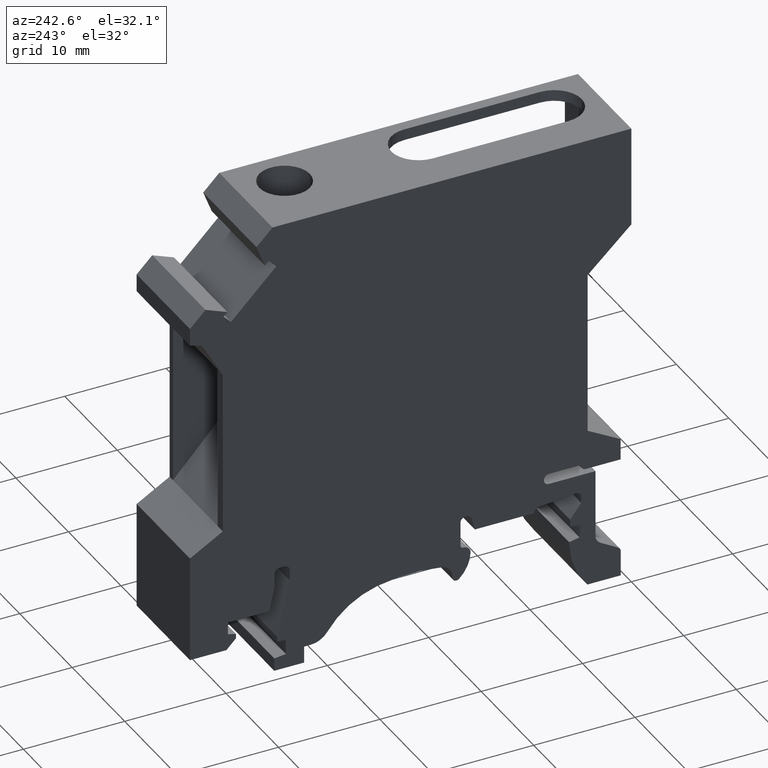
[diagram: clean part render]
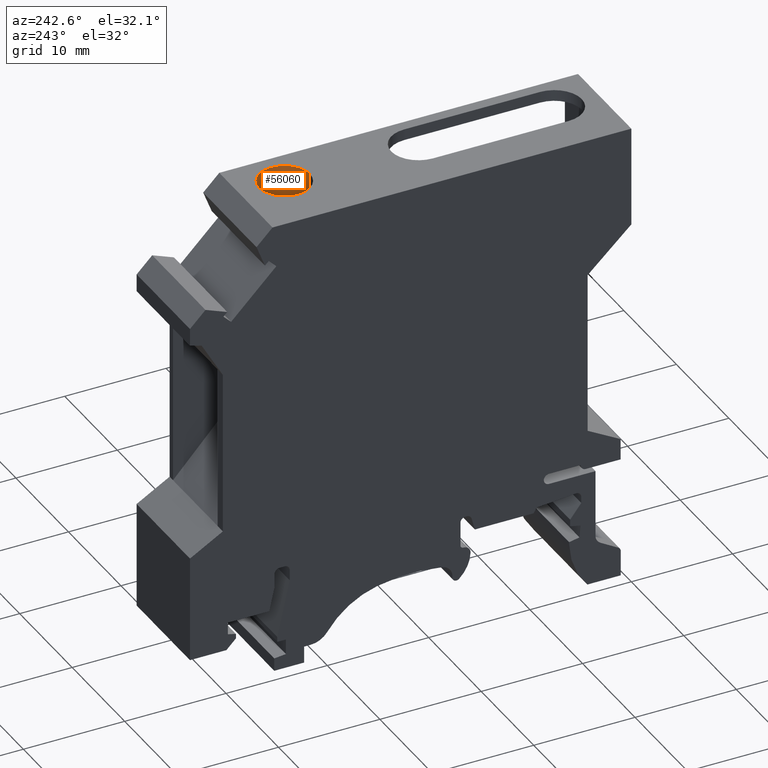
[diagram: same view with one face highlighted and labeled with its STEP entity id]
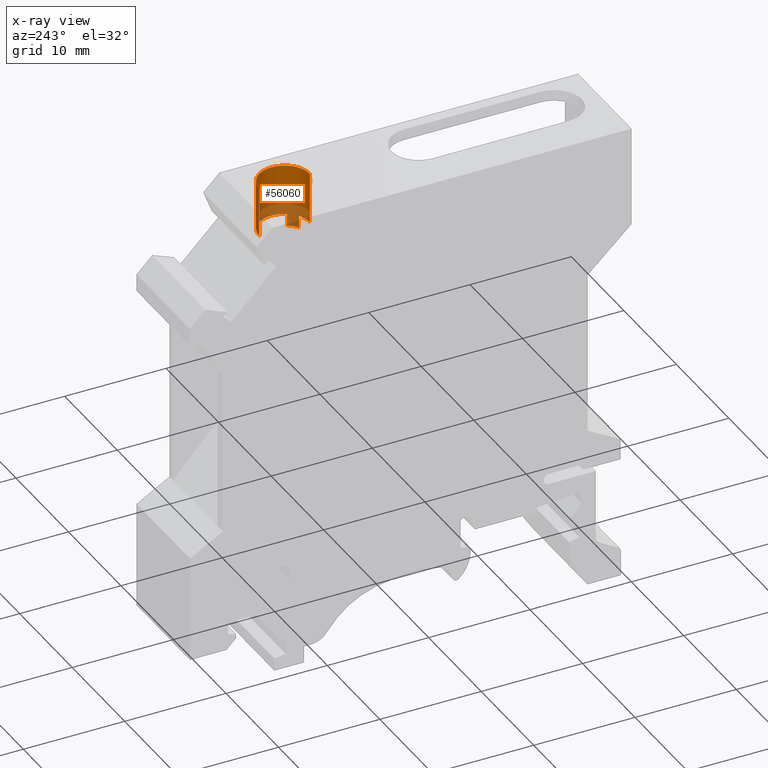
[diagram: x-ray of the same camera — body ghosted, the highlighted face saturated]
A machine part, auxiliary view. The second image highlights one B-rep face of the part: STEP entity #56060.
The next image is the same camera in x-ray: the body ghosted, the highlighted face saturated — about 24% of this face is hidden behind the body in this view.
In plain terms, the highlighted cylindrical surface (edge-blend (fillet) strip) has radius 2.5 mm, axis along (0, 0, 1).
Its self-contained STEP definition (entity closure, byte-faithful):
#17910=CARTESIAN_POINT('',(40.4541997327281,36.058658177701,6.35));
#17920=DIRECTION('',(0.,1.,0.));
#17930=DIRECTION('',(1.,0.,0.));
#17940=AXIS2_PLACEMENT_3D('',#17910,#17920,#17930);
#17950=CIRCLE('',#17940,2.5);
#17960=CARTESIAN_POINT('',(42.9541997327281,36.058658177701,6.35));
#17970=VERTEX_POINT('',#17960);
#17980=CARTESIAN_POINT('',(37.9541997327281,36.058658177701,6.35));
#17990=VERTEX_POINT('',#17980);
#18020=EDGE_CURVE('',#17990,#17970,#17950,.T.);
#47590=CARTESIAN_POINT('',(40.4541997327281,31.058658177701,6.35));
#47600=DIRECTION('',(0.,1.,0.));
#47610=DIRECTION('',(1.,0.,0.));
#47620=AXIS2_PLACEMENT_3D('',#47590,#47600,#47610);
#47630=CIRCLE('',#47620,2.5);
#47640=CARTESIAN_POINT('',(39.1186520262827,31.058658177701,
8.46336516575066));
#47650=VERTEX_POINT('',#47640);
#47660=CARTESIAN_POINT('',(42.9541997327281,31.058658177701,6.35));
#47670=VERTEX_POINT('',#47660);
#47680=EDGE_CURVE('',#47650,#47670,#47630,.T.);
#48200=CARTESIAN_POINT('',(37.9541997327281,31.058658177701,6.35));
#48210=VERTEX_POINT('',#48200);
#48240=CARTESIAN_POINT('',(37.9541997327281,36.058658177701,6.35));
#48250=DIRECTION('',(0.,1.,0.));
#48260=VECTOR('',#48250,1.);
#48270=LINE('',#48240,#48260);
#48280=EDGE_CURVE('',#48210,#17990,#48270,.T.);
#48310=CARTESIAN_POINT('',(42.9541997327281,36.058658177701,6.35));
#48320=DIRECTION('',(0.,1.,0.));
#48330=VECTOR('',#48320,1.);
#48340=LINE('',#48310,#48330);
#48350=EDGE_CURVE('',#47670,#17970,#48340,.T.);
#48480=CARTESIAN_POINT('',(38.3408345669775,31.058658177701,
7.68554770644545));
#48490=VERTEX_POINT('',#48480);
#48500=EDGE_CURVE('',#48210,#48490,#47630,.T.);
#48740=CARTESIAN_POINT('',(39.1186520262827,31.058658177701,
8.46336516575066));
#48750=DIRECTION('',(0.,-1.,0.));
#48760=VECTOR('',#48750,1.);
#48770=LINE('',#48740,#48760);
#48780=CARTESIAN_POINT('',(39.1186520262827,29.858658177701,
8.46336516575066));
#48790=VERTEX_POINT('',#48780);
#48800=EDGE_CURVE('',#47650,#48790,#48770,.T.);
#49090=CARTESIAN_POINT('',(38.3408345669775,29.858658177701,
7.68554770644545));
#49100=VERTEX_POINT('',#49090);
#49150=CARTESIAN_POINT('',(40.4541997327281,29.858658177701,6.35));
#49160=DIRECTION('',(0.,1.,0.));
#49170=DIRECTION('',(1.,0.,0.));
#49180=AXIS2_PLACEMENT_3D('',#49150,#49160,#49170);
#49190=CIRCLE('',#49180,2.5);
#49200=EDGE_CURVE('',#49100,#48790,#49190,.T.);
#49390=CARTESIAN_POINT('',(38.3408345669775,31.058658177701,
7.68554770644545));
#49400=DIRECTION('',(0.,-1.,0.));
#49410=VECTOR('',#49400,1.);
#49420=LINE('',#49390,#49410);
#49430=EDGE_CURVE('',#48490,#49100,#49420,.T.);
#55910=CARTESIAN_POINT('',(40.4541997327281,36.058658177701,6.35));
#55920=DIRECTION('',(0.,1.,0.));
#55930=DIRECTION('',(1.,0.,0.));
#55940=AXIS2_PLACEMENT_3D('',#55910,#55920,#55930);
#55950=CYLINDRICAL_SURFACE('',#55940,2.5);
#55960=ORIENTED_EDGE('',*,*,#48280,.T.);
#55970=ORIENTED_EDGE('',*,*,#48500,.F.);
#55980=ORIENTED_EDGE('',*,*,#49430,.F.);
#55990=ORIENTED_EDGE('',*,*,#49200,.F.);
#56000=ORIENTED_EDGE('',*,*,#48800,.T.);
#56010=ORIENTED_EDGE('',*,*,#47680,.F.);
#56020=ORIENTED_EDGE('',*,*,#48350,.F.);
#56030=ORIENTED_EDGE('',*,*,#18020,.T.);
#56040=EDGE_LOOP('',(#56030,#56020,#56010,#56000,#55990,#55980,#55970,
#55960));
#56050=FACE_OUTER_BOUND('',#56040,.T.);
#56060=ADVANCED_FACE('',(#56050),#55950,.F.);